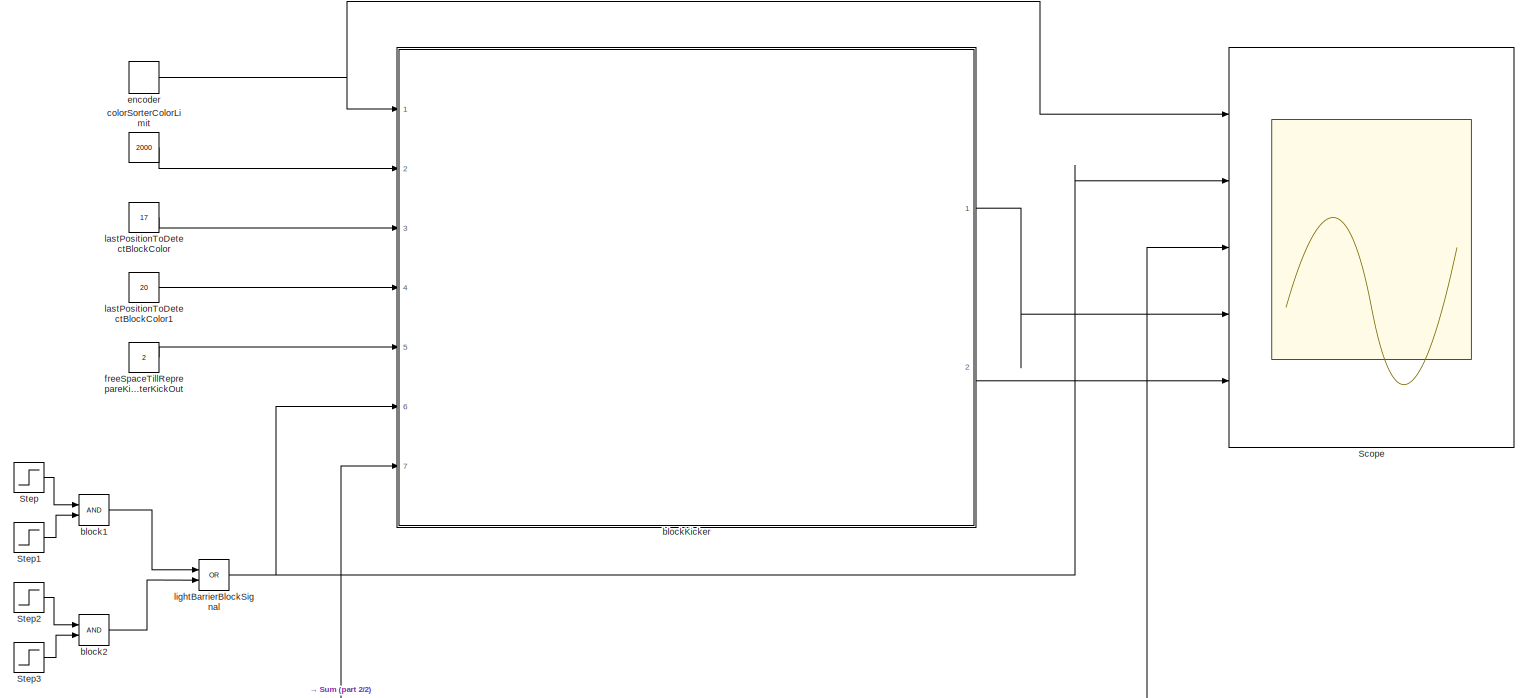
[diagram: root canvas - part 1/2, most of the canvas]
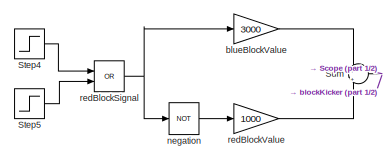
[diagram: root canvas - part 2/2, bottom left region]
MODEL slx_1f6276b73084
KIND model
BLOCK [Scope] Scope
  Floating = off
  LegendLocations = 0.89169     0.86924    0.077344    0.040103\n0.83442     0.68933     0.13462    0.040103\n0.87984     0.50941    0.063504    0.040103\n0.82356     0.32949     0.14548    0.040103\n0.85364    0.099367     0.11782    0.040103
  LimitDataPoints = off
  NumInputPorts = 5
  Ports = [5]
  ShowLegends = on
  TimeRange = 160
  YMax = 3~2~4096~7~5
  YMin = -3~-2~0~-7~-5
  ZoomMode = xonly
BLOCK [Step] Step
  SampleTime = 0
  Time = 5
BLOCK [Step] Step1
  After = 0
  Before = 1
  SampleTime = 0
  Time = 15
BLOCK [Step] Step2
  SampleTime = 0
  Time = 60
BLOCK [Step] Step3
  After = 0
  Before = 1
  SampleTime = 0
  Time = 70
BLOCK [Step] Step4
  After = 0
  Before = 1
  SampleTime = 0
  Time = 75
BLOCK [Step] Step5
  SampleTime = 0
  Time = 85
BLOCK [Sum] Sum
  AccumDataTypeStr = uint16
  IconShape = round
  InputSameDT = off
  Inputs = +|+
  OutDataTypeStr = uint16
  OutMax = 4095
  OutMin = 0
  Ports = [2, 1]
  SaturateOnIntegerOverflow = off
BLOCK [Logic] block1
  AllPortsSameDT = off
  OutDataTypeStr = boolean
  Ports = [2, 1]
BLOCK [Logic] block2
  AllPortsSameDT = off
  OutDataTypeStr = boolean
  Ports = [2, 1]
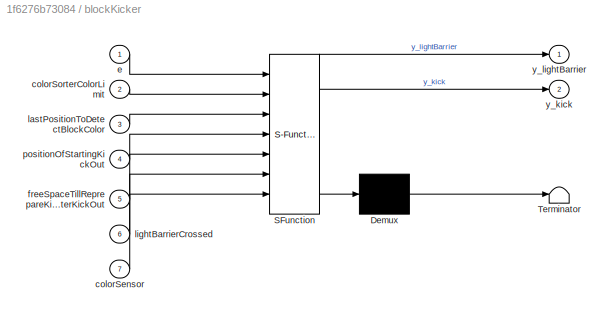
BLOCK [SubSystem] blockKicker
  ErrorFcn = Stateflow.Translate.translate
  PermitHierarchicalResolution = ExplicitOnly
  Ports = [7, 2]
  RequestExecContextInheritance = off
  SFBlockType = Chart
  TreatAsAtomicUnit = on
BLOCK [Demux] blockKicker/ Demux 
  Outputs = 1
  Ports = [1, 1]
BLOCK [S-Function] blockKicker/ SFunction 
  EnableBusSupport = on
  FunctionName = sf_sfun
  PortCounts = [7 3]
  Ports = [7, 3]
  Tag = Stateflow S-Function blockKicker_tSim 1
BLOCK [Terminator] blockKicker/ Terminator 
BLOCK [Inport] blockKicker/colorSensor
  IconDisplay = Port number
  Port = 7
BLOCK [Inport] blockKicker/colorSorterColorLimit
  IconDisplay = Port number
  Port = 2
BLOCK [Inport] blockKicker/e
  IconDisplay = Port number
BLOCK [Inport] blockKicker/freeSpaceTillReprepareKickerAfterKickOut
  IconDisplay = Port number
  Port = 5
BLOCK [Inport] blockKicker/lastPositionToDetectBlockColor
  IconDisplay = Port number
  Port = 3
BLOCK [Inport] blockKicker/lightBarrierCrossed
  IconDisplay = Port number
  Port = 6
BLOCK [Inport] blockKicker/positionOfStartingKickOut
  IconDisplay = Port number
  Port = 4
BLOCK [Outport] blockKicker/y_kick
  IconDisplay = Port number
  Port = 2
BLOCK [Outport] blockKicker/y_lightBarrier
  IconDisplay = Port number
BLOCK [Gain] blueBlockValue
  Gain = 3000
  OutDataTypeStr = uint16
  OutMax = 4095
  OutMin = 0
  ParamDataTypeStr = Inherit: Inherit via internal rule
  SaturateOnIntegerOverflow = off
BLOCK [Constant] colorSorterColorLimit
  OutDataTypeStr = uint16
  OutMax = 4095
  OutMin = 0
  Value = 2000
BLOCK [DiscretePulseGenerator] encoder
  Ports = [0, 1]
  PulseType = Time based
  PulseWidth = 50
BLOCK [Constant] freeSpaceTillReprepareKickerAfterKickOut
  OutDataTypeStr = uint32
  Value = 2
BLOCK [Constant] lastPositionToDetectBlockColor
  OutDataTypeStr = uint32
  Value = 17
BLOCK [Constant] lastPositionToDetectBlockColor1
  OutDataTypeStr = uint32
  Value = 20
BLOCK [Logic] lightBarrierBlockSignal
  AllPortsSameDT = off
  Operator = OR
  OutDataTypeStr = boolean
  Ports = [2, 1]
BLOCK [Logic] negation
  AllPortsSameDT = off
  Operator = NOT
  OutDataTypeStr = boolean
  Ports = [1, 1]
BLOCK [Logic] redBlockSignal
  AllPortsSameDT = off
  Operator = OR
  OutDataTypeStr = boolean
  Ports = [2, 1]
BLOCK [Gain] redBlockValue
  Gain = 1000
  OutDataTypeStr = uint16
  OutMax = 4095
  OutMin = 0
  ParamDataTypeStr = Inherit: Inherit via internal rule
  SaturateOnIntegerOverflow = off
LINE Step1:1 -> block1:2
LINE Step2:1 -> block2:1
LINE Step3:1 -> block2:2
LINE Step4:1 -> redBlockSignal:1
LINE Step5:1 -> redBlockSignal:2
LINE Step:1 -> block1:1
NET Sum:1 -> Scope:3, blockKicker:7
LINE block1:1 -> lightBarrierBlockSignal:1
LINE block2:1 -> lightBarrierBlockSignal:2
LINE blockKicker:1 -> Scope:4
LINE blockKicker:2 -> Scope:5
LINE blueBlockValue:1 -> Sum:1
LINE colorSorterColorLimit:1 -> blockKicker:2
NET encoder:1 -> Scope:1, blockKicker:1
LINE freeSpaceTillReprepareKickerAfterKickOut:1 -> blockKicker:5
LINE lastPositionToDetectBlockColor1:1 -> blockKicker:4
LINE lastPositionToDetectBlockColor:1 -> blockKicker:3
NET lightBarrierBlockSignal:1 -> Scope:2, blockKicker:6
LINE negation:1 -> redBlockValue:1
NET redBlockSignal:1 -> blueBlockValue:1, negation:1
LINE redBlockValue:1 -> Sum:2
note: NET lines group one-source signal fan-out (src -> all destinations, sorted); 1:1 wires keep LINE
CHART blockKicker states=19 transitions=25
  STATE_LABEL 'lightBarrier_controller'
  STATE_LABEL 'idle\nentry: y_lightBarrier = int16(0);'
  STATE_LABEL 'lightBarrierCrossed\nentry: send(counterFromLightBarrierCrossed.RESET);\n send(color_controller.NEXTBLOCK);\n y_lightBarrier = int16(1);'
  STATE_LABEL '/{kicker_controller.enqueuedBlocksToKick =uint8( 0)}'
  STATE_LABEL '[lightBarrierCrossed >= 1]'
  STATE_LABEL '[lightBarrierCrossed <1]'
  STATE_LABEL 'idle\nentry: y_lightBarrier = int16(0);'
  STATE_LABEL 'lightBarrierCrossed\nentry: send(counterFromLightBarrierCrossed.RESET);\n send(color_controller.NEXTBLOCK);\n y_lightBarrier = int16(1);'
  STATE_LABEL 'counterFromLightBarrierCrossed'
  STATE_LABEL 'start\nentry: count= uint32(0);\n'
  STATE_LABEL 'highLevel'
  STATE_LABEL 'lowLevel\nentry: count = count + 1;'
  STATE_LABEL '[e>0]'
  STATE_LABEL '[e>0]'
  STATE_LABEL '[e==0]'
  STATE_LABEL 'RESET'
  STATE_LABEL 'start\nentry: count= uint32(0);\n'
  STATE_LABEL 'highLevel'
  STATE_LABEL 'lowLevel\nentry: count = count + 1;'
  STATE_LABEL 'counterFromKick'
  STATE_LABEL 'start\nentry: count= uint32(0);\n'
  STATE_LABEL 'highLevel'
  STATE_LABEL 'lowLevel\nentry: count = count + 1;'
  STATE_LABEL '[e>0]'
  STATE_LABEL '[e>0]'
  STATE_LABEL '[e==0]'
  STATE_LABEL 'RESET'
  STATE_LABEL 'start\nentry: count= uint32(0);\n'
  STATE_LABEL 'highLevel'
  STATE_LABEL 'lowLevel\nentry: count = count + 1;'
  STATE_LABEL 'kicker_controller'
  STATE_LABEL 'kick\nentry: send(counterFromKick.RESET);\n enqueuedBlocksToKick = enqueuedBlocksToKick -1;\n y_kick = int16(5);'
  STATE_LABEL 'idle\nentry: y_kick = int16(0);\n'
  STATE_LABEL 'reprepareKicker\nentry: y_kick = int16(-5);'
  STATE_LABEL '[[counterFromLightBarrierCrossed.count >= positionOfStartingKickOut] && [enqueuedBlocksToKick > 0]]'
  STATE_LABEL '[counterFromKick.count >= freeSpaceTillReprepareKickerAfterKickOut]'
  STATE_LABEL 'kick\nentry: send(counterFromKick.RESET);\n enqueuedBlocksToKick = enqueuedBlocksToKick -1;\n y_kick = int16(5);'
  STATE_LABEL 'idle\nentry: y_kick = int16(0);\n'
  STATE_LABEL 'reprepareKicker\nentry: y_kick = int16(-5);'
  STATE_LABEL 'color_controller'
